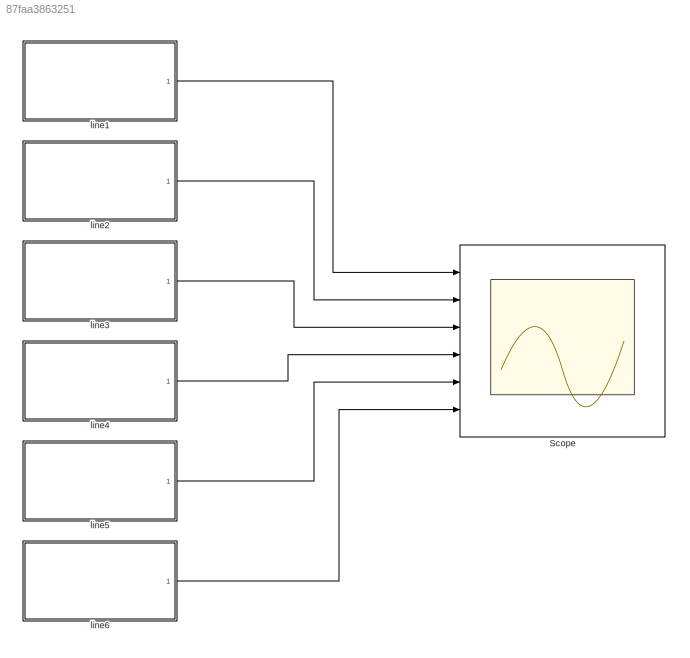
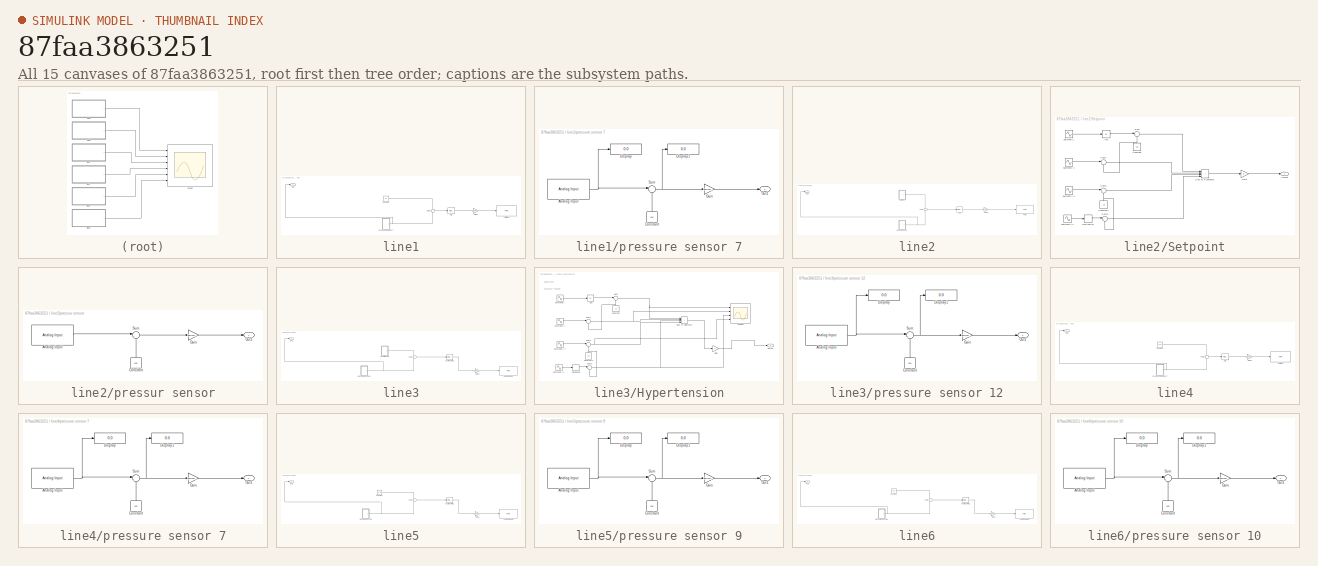
[diagram: thumbnail index - all 15 canvases of the model, root first then tree order]
MODEL slx_87faa3863251
KIND model
CONFIG AbsTol = auto
CONFIG EnableMultiTasking = off
CONFIG FixedStep = auto
CONFIG MaxStep = auto
CONFIG MinStep = auto
CONFIG RelTol = 1e-3
CONFIG SampleTimeConstraint = Unconstrained
CONFIG SolverName = VariableStepAuto
CONFIG StartTime = 0.0
CONFIG StopTime = 10.0
BLOCK [Scope] Scope
  Floating = off
  NumInputPorts = 6
  Ports = [6]
  ScopeSpecificationString = Simulink.scopes.TimeScopeBlockCfg('CurrentConfiguration', extmgr.ConfigurationSet(extmgr.Configuration('Core','General UI',true),extmgr.Configuration('Core','Source UI',true),extmgr.Configuration('Sources','WiredSimulink',true,'DataLoggingVariableName','ScopeData1'),extmgr.Configuration('Visuals','Time Domain',true),extmgr.Configuration('Tools','Plot Navigation',true),extmgr.Configuration('Tools',...<+40ch>
BLOCK [SubSystem] line1
  Ports = [0, 1]
  RequestExecContextInheritance = off
BLOCK [Constant] line1/Constant
  Value = 80
BLOCK [Gain] line1/Gain2
  Gain = (255/50)
BLOCK [Outport] line1/Out1
BLOCK [Reference] line1/PID  REF=pid_lib/PID Controller
  Ports = [1, 1]
  SourceBlock = pid_lib/PID Controller
  SourceProductBaseCode = SL
  SourceType = PID 1dof
BLOCK [Reference] line1/PWM line 1  REF=arduinolib/PWM
  Ports = [1]
  SourceBlock = arduinolib/PWM
  SourceProductBaseCode = ARDUINO
  SourceType = Arduino PWM
BLOCK [Sum] line1/Sum2
  Inputs = +-
  LockScale = on
  Ports = [2, 1]
BLOCK [SubSystem] line1/pressure sensor 7
  Ports = [0, 1]
  RequestExecContextInheritance = off
BLOCK [Reference] line1/pressure sensor 7/Analog Input  REF=arduinolib/Analog Input
  Ports = [0, 1]
  SourceBlock = arduinolib/Analog Input
  SourceProductBaseCode = ARDUINO
  SourceType = Arduino Analog Input
BLOCK [Constant] line1/pressure sensor 7/Constant
  NameLocation = right
  Value = 100
BLOCK [Display] line1/pressure sensor 7/Display
  Decimation = 1
  Ports = [1]
BLOCK [Display] line1/pressure sensor 7/Display1
  Decimation = 1
  Ports = [1]
BLOCK [Gain] line1/pressure sensor 7/Gain
  Gain = 258.575/899
BLOCK [Outport] line1/pressure sensor 7/Out1
BLOCK [Sum] line1/pressure sensor 7/Sum
  Inputs = |+-
  Ports = [2, 1]
BLOCK [SubSystem] line2
  Ports = [0, 1]
  RequestExecContextInheritance = off
BLOCK [Gain] line2/Gain2
  Gain = (255/50)
BLOCK [Outport] line2/Out1
BLOCK [Reference] line2/PID  REF=pid_lib/PID Controller
  Ports = [1, 1]
  SourceBlock = pid_lib/PID Controller
  SourceProductBaseCode = SL
  SourceType = PID 1dof
BLOCK [Reference] line2/PWM  REF=arduinolib/PWM
  Ports = [1]
  SourceBlock = arduinolib/PWM
  SourceProductBaseCode = ARDUINO
  SourceType = Arduino PWM
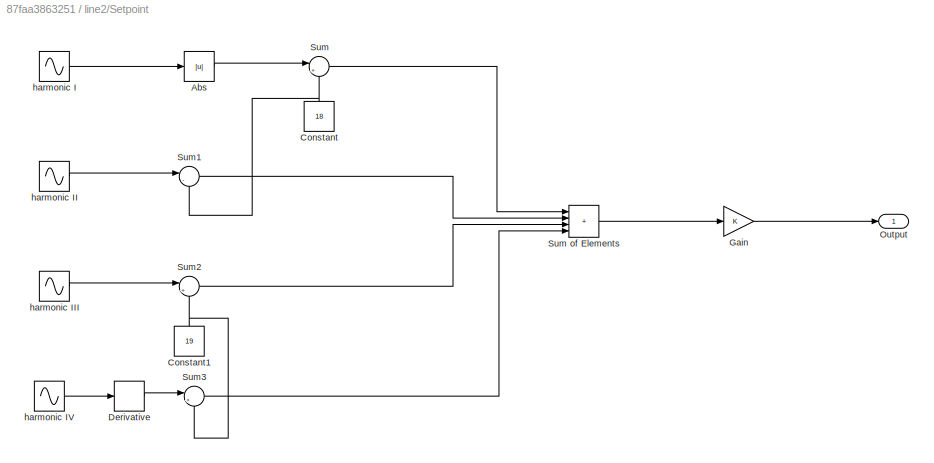
BLOCK [SubSystem] line2/Setpoint
  Ports = [0, 1]
  RequestExecContextInheritance = off
BLOCK [Abs] line2/Setpoint/Abs
  SaturateOnIntegerOverflow = off
BLOCK [Constant] line2/Setpoint/Constant
  NameLocation = right
  Value = 18
BLOCK [Constant] line2/Setpoint/Constant1
  NameLocation = right
  Value = 19
BLOCK [Derivative] line2/Setpoint/Derivative
  CoefficientInTFapproximation = 0
BLOCK [Gain] line2/Setpoint/Gain
BLOCK [Outport] line2/Setpoint/Output
BLOCK [Sum] line2/Setpoint/Sum
  Inputs = |++
  Ports = [2, 1]
BLOCK [Sum] line2/Setpoint/Sum of Elements
  IconShape = rectangular
  Inputs = ++++
  Ports = [4, 1]
BLOCK [Sum] line2/Setpoint/Sum1
  Inputs = |-+
  Ports = [2, 1]
BLOCK [Sum] line2/Setpoint/Sum2
  Inputs = |++
  Ports = [2, 1]
BLOCK [Sum] line2/Setpoint/Sum3
  Inputs = |++
  Ports = [2, 1]
BLOCK [Sin] line2/Setpoint/harmonic I
  Amplitude = 40
  Frequency = 0.5
  Ports = [0, 1]
  SampleTime = 0
BLOCK [Sin] line2/Setpoint/harmonic II
  Amplitude = 50
  Ports = [0, 1]
  SampleTime = 0
BLOCK [Sin] line2/Setpoint/harmonic III
  Amplitude = 40
  Ports = [0, 1]
  SampleTime = 0
BLOCK [Sin] line2/Setpoint/harmonic IV
  Amplitude = 32
  Ports = [0, 1]
  SampleTime = 0
BLOCK [Sum] line2/Sum2
  Inputs = +-
  LockScale = on
  Ports = [2, 1]
BLOCK [SubSystem] line2/pressur sensor
  Ports = [0, 1]
  RequestExecContextInheritance = off
BLOCK [Reference] line2/pressur sensor/Analog Input  REF=arduinolib/Analog Input
  Ports = [0, 1]
  SourceBlock = arduinolib/Analog Input
  SourceProductBaseCode = ARDUINO
  SourceType = Arduino Analog Input
BLOCK [Constant] line2/pressur sensor/Constant
  NameLocation = right
  Value = 100
BLOCK [Gain] line2/pressur sensor/Gain
  Gain = 258.575/899
BLOCK [Outport] line2/pressur sensor/Out1
BLOCK [Sum] line2/pressur sensor/Sum
  Inputs = |+-
  Ports = [2, 1]
BLOCK [SubSystem] line3
  Ports = [0, 1]
  RequestExecContextInheritance = off
BLOCK [Gain] line3/Gain2
  Gain = (255/50)
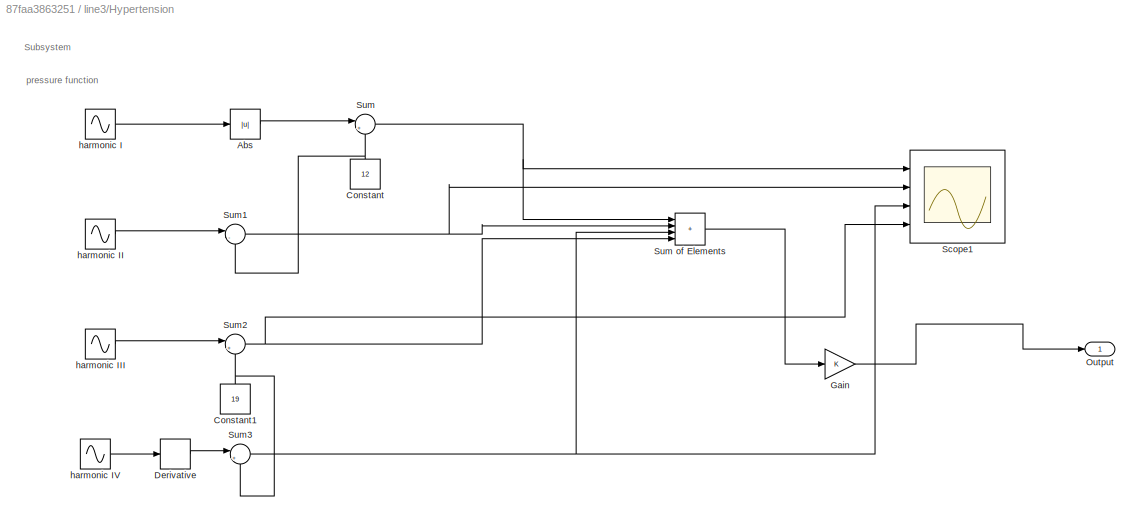
BLOCK [SubSystem] line3/Hypertension
  Ports = [0, 1]
  RequestExecContextInheritance = off
BLOCK [Abs] line3/Hypertension/Abs
  SaturateOnIntegerOverflow = off
BLOCK [Constant] line3/Hypertension/Constant
  NameLocation = right
  Value = 12
BLOCK [Constant] line3/Hypertension/Constant1
  NameLocation = right
  Value = 19
BLOCK [Derivative] line3/Hypertension/Derivative
  CoefficientInTFapproximation = 0
BLOCK [Gain] line3/Hypertension/Gain
BLOCK [Outport] line3/Hypertension/Output
BLOCK [Scope] line3/Hypertension/Scope1
  Floating = off
  NumInputPorts = 4
  Ports = [4]
  ScopeSpecificationString = Simulink.scopes.TimeScopeBlockCfg('CurrentConfiguration', extmgr.ConfigurationSet(extmgr.Configuration('Core','General UI',true),extmgr.Configuration('Core','Source UI',true),extmgr.Configuration('Sources','WiredSimulink',true,'DataLoggingVariableName','ScopeData1'),extmgr.Configuration('Visuals','Time Domain',true,'SerializedDisplays',{struct('MinYLimReal','-44.49801','MaxYLimReal','80.49859','YL...<+1396ch>
BLOCK [Sum] line3/Hypertension/Sum
  Inputs = |++
  Ports = [2, 1]
BLOCK [Sum] line3/Hypertension/Sum of Elements
  IconShape = rectangular
  Inputs = ++++
  Ports = [4, 1]
BLOCK [Sum] line3/Hypertension/Sum1
  Inputs = |-+
  Ports = [2, 1]
BLOCK [Sum] line3/Hypertension/Sum2
  Inputs = |++
  Ports = [2, 1]
BLOCK [Sum] line3/Hypertension/Sum3
  Inputs = |++
  Ports = [2, 1]
BLOCK [Sin] line3/Hypertension/harmonic I
  Amplitude = 130
  Frequency = 0.5
  Ports = [0, 1]
  SampleTime = 0
BLOCK [Sin] line3/Hypertension/harmonic II
  Amplitude = 128
  Ports = [0, 1]
  SampleTime = 0
BLOCK [Sin] line3/Hypertension/harmonic III
  Amplitude = 90
  Ports = [0, 1]
  SampleTime = 0
BLOCK [Sin] line3/Hypertension/harmonic IV
  Amplitude = 80
  Ports = [0, 1]
  SampleTime = 0
BLOCK [Outport] line3/Out1
BLOCK [Sum] line3/Sum2
  Inputs = +-
  LockScale = on
  Ports = [2, 1]
BLOCK [SubSystem] line3/pressure sensor 12
  Ports = [0, 1]
  RequestExecContextInheritance = off
BLOCK [Reference] line3/pressure sensor 12/Analog Input  REF=arduinolib/Analog Input
  Ports = [0, 1]
  SourceBlock = arduinolib/Analog Input
  SourceProductBaseCode = ARDUINO
  SourceType = Arduino Analog Input
BLOCK [Constant] line3/pressure sensor 12/Constant
  NameLocation = right
  Value = 100
BLOCK [Display] line3/pressure sensor 12/Display
  Decimation = 1
  Ports = [1]
BLOCK [Display] line3/pressure sensor 12/Display1
  Decimation = 1
  Ports = [1]
BLOCK [Gain] line3/pressure sensor 12/Gain
  Gain = 258.575/899
BLOCK [Outport] line3/pressure sensor 12/Out1
BLOCK [Sum] line3/pressure sensor 12/Sum
  Inputs = |+-
  Ports = [2, 1]
BLOCK [Reference] line3/upstream PID1  REF=pid_lib/PID Controller
  Ports = [1, 1]
  SourceBlock = pid_lib/PID Controller
  SourceProductBaseCode = SL
  SourceType = PID 1dof
BLOCK [Reference] line3/upstream pwm  REF=arduinolib/PWM
  Ports = [1]
  SourceBlock = arduinolib/PWM
  SourceProductBaseCode = ARDUINO
  SourceType = Arduino PWM
BLOCK [SubSystem] line4
  Ports = [0, 1]
  RequestExecContextInheritance = off
BLOCK [Constant] line4/Constant
  Value = 100
BLOCK [Gain] line4/Gain2
  Gain = (255/50)
BLOCK [Outport] line4/Out1
BLOCK [Reference] line4/PID  REF=pid_lib/PID Controller
  Ports = [1, 1]
  SourceBlock = pid_lib/PID Controller
  SourceProductBaseCode = SL
  SourceType = PID 1dof
BLOCK [Reference] line4/PWM line 1  REF=arduinolib/PWM
  Ports = [1]
  SourceBlock = arduinolib/PWM
  SourceProductBaseCode = ARDUINO
  SourceType = Arduino PWM
BLOCK [Sum] line4/Sum2
  Inputs = +-
  LockScale = on
  Ports = [2, 1]
BLOCK [SubSystem] line4/pressure sensor 7
  Ports = [0, 1]
  RequestExecContextInheritance = off
BLOCK [Reference] line4/pressure sensor 7/Analog Input  REF=arduinolib/Analog Input
  Ports = [0, 1]
  SourceBlock = arduinolib/Analog Input
  SourceProductBaseCode = ARDUINO
  SourceType = Arduino Analog Input
BLOCK [Constant] line4/pressure sensor 7/Constant
  NameLocation = right
  Value = 100
BLOCK [Display] line4/pressure sensor 7/Display
  Decimation = 1
  Ports = [1]
BLOCK [Display] line4/pressure sensor 7/Display1
  Decimation = 1
  Ports = [1]
BLOCK [Gain] line4/pressure sensor 7/Gain
  Gain = 258.575/899
BLOCK [Outport] line4/pressure sensor 7/Out1
BLOCK [Sum] line4/pressure sensor 7/Sum
  Inputs = |+-
  Ports = [2, 1]
BLOCK [SubSystem] line5
  Ports = [0, 1]
  RequestExecContextInheritance = off
BLOCK [Constant] line5/Constant
  Value = 120
BLOCK [Gain] line5/Gain2
  Gain = (255/50)
BLOCK [Outport] line5/Out1
BLOCK [Sum] line5/Sum2
  Inputs = +-
  LockScale = on
  Ports = [2, 1]
BLOCK [SubSystem] line5/pressure sensor 9
  Ports = [0, 1]
  RequestExecContextInheritance = off
BLOCK [Reference] line5/pressure sensor 9/Analog Input  REF=arduinolib/Analog Input
  Ports = [0, 1]
  SourceBlock = arduinolib/Analog Input
  SourceProductBaseCode = ARDUINO
  SourceType = Arduino Analog Input
BLOCK [Constant] line5/pressure sensor 9/Constant
  NameLocation = right
  Value = 100
BLOCK [Display] line5/pressure sensor 9/Display
  Decimation = 1
  Ports = [1]
BLOCK [Display] line5/pressure sensor 9/Display1
  Decimation = 1
  Ports = [1]
BLOCK [Gain] line5/pressure sensor 9/Gain
  Gain = 258.575/899
BLOCK [Outport] line5/pressure sensor 9/Out1
BLOCK [Sum] line5/pressure sensor 9/Sum
  Inputs = |+-
  Ports = [2, 1]
BLOCK [Reference] line5/upstream PID1  REF=pid_lib/PID Controller
  Ports = [1, 1]
  SourceBlock = pid_lib/PID Controller
  SourceProductBaseCode = SL
  SourceType = PID 1dof
BLOCK [Reference] line5/upstream pwm1  REF=arduinolib/PWM
  Ports = [1]
  SourceBlock = arduinolib/PWM
  SourceProductBaseCode = ARDUINO
  SourceType = Arduino PWM
BLOCK [SubSystem] line6
  Ports = [0, 1]
  RequestExecContextInheritance = off
BLOCK [Constant] line6/Constant
  Value = 200
BLOCK [Gain] line6/Gain2
  Gain = (255/50)
BLOCK [Outport] line6/Out1
BLOCK [Sum] line6/Sum2
  Inputs = +-
  LockScale = on
  Ports = [2, 1]
BLOCK [SubSystem] line6/pressure sensor 10
  Ports = [0, 1]
  RequestExecContextInheritance = off
BLOCK [Reference] line6/pressure sensor 10/Analog Input  REF=arduinolib/Analog Input
  Ports = [0, 1]
  SourceBlock = arduinolib/Analog Input
  SourceProductBaseCode = ARDUINO
  SourceType = Arduino Analog Input
BLOCK [Constant] line6/pressure sensor 10/Constant
  NameLocation = right
  Value = 100
BLOCK [Display] line6/pressure sensor 10/Display
  Decimation = 1
  Ports = [1]
BLOCK [Display] line6/pressure sensor 10/Display1
  Decimation = 1
  Ports = [1]
BLOCK [Gain] line6/pressure sensor 10/Gain
  Gain = 258.575/899
BLOCK [Outport] line6/pressure sensor 10/Out1
BLOCK [Sum] line6/pressure sensor 10/Sum
  Inputs = |+-
  Ports = [2, 1]
BLOCK [Reference] line6/upstream PID1  REF=pid_lib/PID Controller
  Ports = [1, 1]
  SourceBlock = pid_lib/PID Controller
  SourceProductBaseCode = SL
  SourceType = PID 1dof
BLOCK [Reference] line6/upstream pwm1  REF=arduinolib/PWM
  Ports = [1]
  SourceBlock = arduinolib/PWM
  SourceProductBaseCode = ARDUINO
  SourceType = Arduino PWM
ANNOTATION line3/Hypertension: Subsystem
ANNOTATION line3/Hypertension: pressure function
LINE line1/Constant:1 -> line1/Sum2:1
LINE line1/Gain2:1 -> line1/PWM line 1:1
LINE line1/PID:1 -> line1/Gain2:1
LINE line1/Sum2:1 -> line1/PID:1
NET line1/pressure sensor 7/Analog Input:1 -> line1/pressure sensor 7/Display:1, line1/pressure sensor 7/Sum:1
LINE line1/pressure sensor 7/Constant:1 -> line1/pressure sensor 7/Sum:2
LINE line1/pressure sensor 7/Gain:1 -> line1/pressure sensor 7/Out1:1
NET line1/pressure sensor 7/Sum:1 -> line1/pressure sensor 7/Display1:1, line1/pressure sensor 7/Gain:1
NET line1/pressure sensor 7:1 -> line1/Out1:1, line1/Sum2:2
LINE line1:1 -> Scope:1
LINE line2/Gain2:1 -> line2/PWM:1
LINE line2/PID:1 -> line2/Gain2:1
LINE line2/Setpoint/Abs:1 -> line2/Setpoint/Sum:1
NET line2/Setpoint/Constant1:1 -> line2/Setpoint/Sum2:2, line2/Setpoint/Sum3:2
NET line2/Setpoint/Constant:1 -> line2/Setpoint/Sum1:2, line2/Setpoint/Sum:2
LINE line2/Setpoint/Derivative:1 -> line2/Setpoint/Sum3:1
LINE line2/Setpoint/Gain:1 -> line2/Setpoint/Output:1
LINE line2/Setpoint/Sum of Elements:1 -> line2/Setpoint/Gain:1
LINE line2/Setpoint/Sum1:1 -> line2/Setpoint/Sum of Elements:2
LINE line2/Setpoint/Sum2:1 -> line2/Setpoint/Sum of Elements:3
LINE line2/Setpoint/Sum3:1 -> line2/Setpoint/Sum of Elements:4
LINE line2/Setpoint/Sum:1 -> line2/Setpoint/Sum of Elements:1
LINE line2/Setpoint/harmonic I:1 -> line2/Setpoint/Abs:1
LINE line2/Setpoint/harmonic II:1 -> line2/Setpoint/Sum1:1
LINE line2/Setpoint/harmonic III:1 -> line2/Setpoint/Sum2:1
LINE line2/Setpoint/harmonic IV:1 -> line2/Setpoint/Derivative:1
LINE line2/Setpoint:1 -> line2/Sum2:1
LINE line2/Sum2:1 -> line2/PID:1
LINE line2/pressur sensor/Analog Input:1 -> line2/pressur sensor/Sum:1
LINE line2/pressur sensor/Constant:1 -> line2/pressur sensor/Sum:2
LINE line2/pressur sensor/Gain:1 -> line2/pressur sensor/Out1:1
LINE line2/pressur sensor/Sum:1 -> line2/pressur sensor/Gain:1
NET line2/pressur sensor:1 -> line2/Out1:1, line2/Sum2:2
LINE line2:1 -> Scope:2
LINE line3/Gain2:1 -> line3/upstream pwm:1
LINE line3/Hypertension/Abs:1 -> line3/Hypertension/Sum:1
NET line3/Hypertension/Constant1:1 -> line3/Hypertension/Sum2:2, line3/Hypertension/Sum3:2
NET line3/Hypertension/Constant:1 -> line3/Hypertension/Sum1:2, line3/Hypertension/Sum:2
LINE line3/Hypertension/Derivative:1 -> line3/Hypertension/Sum3:1
LINE line3/Hypertension/Gain:1 -> line3/Hypertension/Output:1
LINE line3/Hypertension/Sum of Elements:1 -> line3/Hypertension/Gain:1
NET line3/Hypertension/Sum1:1 -> line3/Hypertension/Scope1:2, line3/Hypertension/Sum of Elements:2
NET line3/Hypertension/Sum2:1 -> line3/Hypertension/Scope1:4, line3/Hypertension/Sum of Elements:4
NET line3/Hypertension/Sum3:1 -> line3/Hypertension/Scope1:3, line3/Hypertension/Sum of Elements:3
NET line3/Hypertension/Sum:1 -> line3/Hypertension/Scope1:1, line3/Hypertension/Sum of Elements:1
LINE line3/Hypertension/harmonic I:1 -> line3/Hypertension/Abs:1
LINE line3/Hypertension/harmonic II:1 -> line3/Hypertension/Sum1:1
LINE line3/Hypertension/harmonic III:1 -> line3/Hypertension/Sum2:1
LINE line3/Hypertension/harmonic IV:1 -> line3/Hypertension/Derivative:1
LINE line3/Hypertension:1 -> line3/Sum2:1
LINE line3/Sum2:1 -> line3/upstream PID1:1
NET line3/pressure sensor 12/Analog Input:1 -> line3/pressure sensor 12/Display:1, line3/pressure sensor 12/Sum:1
LINE line3/pressure sensor 12/Constant:1 -> line3/pressure sensor 12/Sum:2
LINE line3/pressure sensor 12/Gain:1 -> line3/pressure sensor 12/Out1:1
NET line3/pressure sensor 12/Sum:1 -> line3/pressure sensor 12/Display1:1, line3/pressure sensor 12/Gain:1
NET line3/pressure sensor 12:1 -> line3/Out1:1, line3/Sum2:2
LINE line3/upstream PID1:1 -> line3/Gain2:1
LINE line3:1 -> Scope:3
LINE line4/Constant:1 -> line4/Sum2:1
LINE line4/Gain2:1 -> line4/PWM line 1:1
LINE line4/PID:1 -> line4/Gain2:1
LINE line4/Sum2:1 -> line4/PID:1
NET line4/pressure sensor 7/Analog Input:1 -> line4/pressure sensor 7/Display:1, line4/pressure sensor 7/Sum:1
LINE line4/pressure sensor 7/Constant:1 -> line4/pressure sensor 7/Sum:2
LINE line4/pressure sensor 7/Gain:1 -> line4/pressure sensor 7/Out1:1
NET line4/pressure sensor 7/Sum:1 -> line4/pressure sensor 7/Display1:1, line4/pressure sensor 7/Gain:1
NET line4/pressure sensor 7:1 -> line4/Out1:1, line4/Sum2:2
LINE line4:1 -> Scope:4
LINE line5/Constant:1 -> line5/Sum2:1
LINE line5/Gain2:1 -> line5/upstream pwm1:1
LINE line5/Sum2:1 -> line5/upstream PID1:1
NET line5/pressure sensor 9/Analog Input:1 -> line5/pressure sensor 9/Display:1, line5/pressure sensor 9/Sum:1
LINE line5/pressure sensor 9/Constant:1 -> line5/pressure sensor 9/Sum:2
LINE line5/pressure sensor 9/Gain:1 -> line5/pressure sensor 9/Out1:1
NET line5/pressure sensor 9/Sum:1 -> line5/pressure sensor 9/Display1:1, line5/pressure sensor 9/Gain:1
NET line5/pressure sensor 9:1 -> line5/Out1:1, line5/Sum2:2
LINE line5/upstream PID1:1 -> line5/Gain2:1
LINE line5:1 -> Scope:5
LINE line6/Constant:1 -> line6/Sum2:1
LINE line6/Gain2:1 -> line6/upstream pwm1:1
LINE line6/Sum2:1 -> line6/upstream PID1:1
NET line6/pressure sensor 10/Analog Input:1 -> line6/pressure sensor 10/Display:1, line6/pressure sensor 10/Sum:1
LINE line6/pressure sensor 10/Constant:1 -> line6/pressure sensor 10/Sum:2
LINE line6/pressure sensor 10/Gain:1 -> line6/pressure sensor 10/Out1:1
NET line6/pressure sensor 10/Sum:1 -> line6/pressure sensor 10/Display1:1, line6/pressure sensor 10/Gain:1
NET line6/pressure sensor 10:1 -> line6/Out1:1, line6/Sum2:2
LINE line6/upstream PID1:1 -> line6/Gain2:1
LINE line6:1 -> Scope:6
note: NET lines group one-source signal fan-out (src -> all destinations, sorted); 1:1 wires keep LINE
